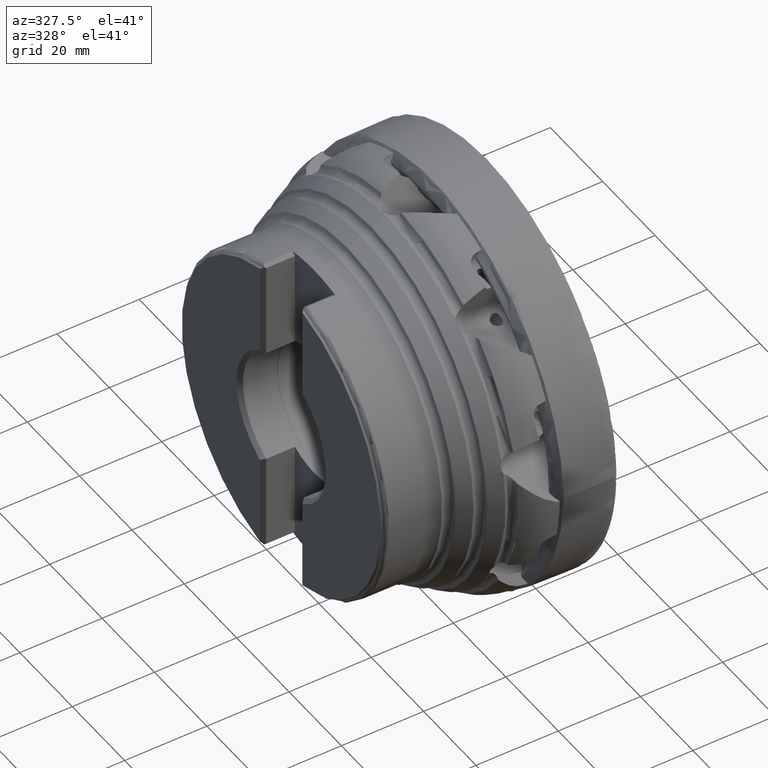
[diagram: clean part render]
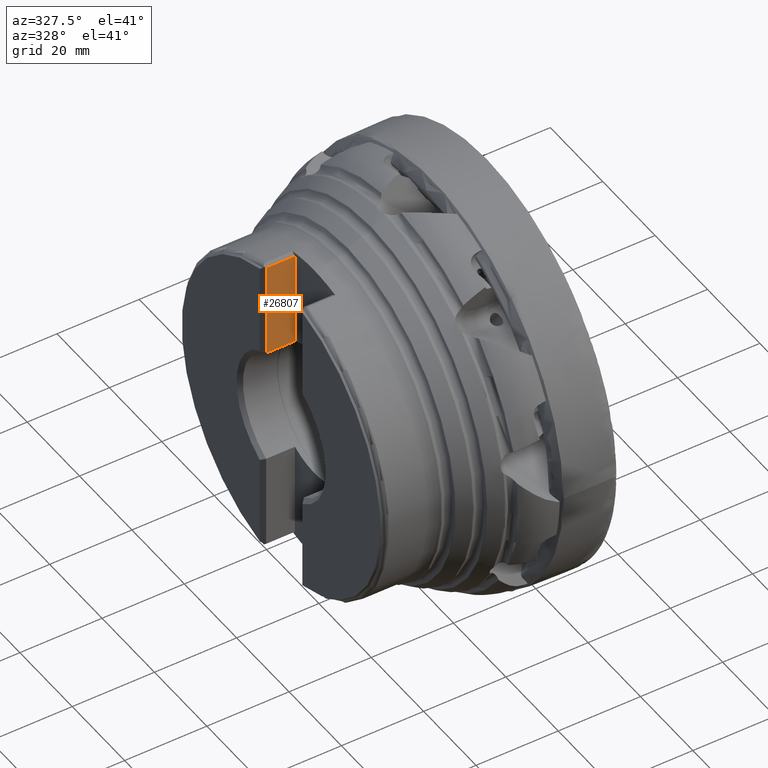
[diagram: same view with one face highlighted and labeled with its STEP entity id]
A machine part, auxiliary view. The second image highlights one B-rep face of the part: STEP entity #26807.
In plain terms, the highlighted planar face has unit normal (-0, 1, 0).
Its self-contained STEP definition (entity closure, byte-faithful):
#1885 = EDGE_CURVE ( 'NONE', #8559, #5003, #19461, .T. ) ;
#2825 = LINE ( 'NONE', #6903, #17342 ) ;
#2894 = ORIENTED_EDGE ( 'NONE', *, *, #1885, .F. ) ;
#3240 = CARTESIAN_POINT ( 'NONE',  ( -41.24999999999999300, 7.199999999999994800, 37.47303783587896900 ) ) ;
#3494 = CARTESIAN_POINT ( 'NONE',  ( -41.24999999999999300, 7.199999999999994800, -40.00000000000000000 ) ) ;
#3614 = CARTESIAN_POINT ( 'NONE',  ( -48.24999999999997200, 7.199999999999994000, -40.00000000000000000 ) ) ;
#5003 = VERTEX_POINT ( 'NONE', #7920 ) ;
#6903 = CARTESIAN_POINT ( 'NONE',  ( -47.74999999999985800, 7.199999999999994000, 37.47303783587896900 ) ) ;
#7920 = CARTESIAN_POINT ( 'NONE',  ( -48.24999999999997200, 7.199999999999987700, 37.47303783587896200 ) ) ;
#8065 = VECTOR ( 'NONE', #9067, 1000.000000000000000 ) ;
#8445 = EDGE_LOOP ( 'NONE', ( #11645, #25233, #2894, #27197 ) ) ;
#8559 = VERTEX_POINT ( 'NONE', #17531 ) ;
#9005 = CARTESIAN_POINT ( 'NONE',  ( -8.921435019309322100E-016, 7.200000000000000200, 14.37239106759900800 ) ) ;
#9067 = DIRECTION ( 'NONE',  ( -0.0000000000000000000, -0.0000000000000000000, 1.000000000000000000 ) ) ;
#9410 = EDGE_CURVE ( 'NONE', #13117, #27978, #19545, .T. ) ;
#10245 = DIRECTION ( 'NONE',  ( -1.000000000000000000, -1.239088197126294800E-016, 0.0000000000000000000 ) ) ;
#11645 = ORIENTED_EDGE ( 'NONE', *, *, #9410, .T. ) ;
#12369 = LINE ( 'NONE', #9005, #26119 ) ;
#13117 = VERTEX_POINT ( 'NONE', #24344 ) ;
#15754 = VECTOR ( 'NONE', #23122, 1000.000000000000000 ) ;
#17173 = AXIS2_PLACEMENT_3D ( 'NONE', #3614, #23419, #10245 ) ;
#17235 = EDGE_CURVE ( 'NONE', #27978, #5003, #2825, .T. ) ;
#17342 = VECTOR ( 'NONE', #17662, 1000.000000000000000 ) ;
#17531 = CARTESIAN_POINT ( 'NONE',  ( -48.24999999999997200, 7.199999999999994000, 14.37239106759901500 ) ) ;
#17662 = DIRECTION ( 'NONE',  ( -1.000000000000000000, -1.239088197126294800E-016, 2.654026406738398000E-017 ) ) ;
#18125 = CARTESIAN_POINT ( 'NONE',  ( -48.24999999999997200, 7.199999999999994000, -40.00000000000000000 ) ) ;
#19461 = LINE ( 'NONE', #18125, #8065 ) ;
#19545 = LINE ( 'NONE', #3494, #15754 ) ;
#21135 = PLANE ( 'NONE',  #17173 ) ;
#21734 = EDGE_CURVE ( 'NONE', #13117, #8559, #12369, .T. ) ;
#23122 = DIRECTION ( 'NONE',  ( -0.0000000000000000000, -0.0000000000000000000, 1.000000000000000000 ) ) ;
#23419 = DIRECTION ( 'NONE',  ( -1.239088197126294800E-016, 1.000000000000000000, 0.0000000000000000000 ) ) ;
#24309 = DIRECTION ( 'NONE',  ( -1.000000000000000000, 0.0000000000000000000, 0.0000000000000000000 ) ) ;
#24344 = CARTESIAN_POINT ( 'NONE',  ( -41.24999999999999300, 7.199999999999994800, 14.37239106759900900 ) ) ;
#25233 = ORIENTED_EDGE ( 'NONE', *, *, #17235, .T. ) ;
#26119 = VECTOR ( 'NONE', #24309, 1000.000000000000000 ) ;
#26807 = ADVANCED_FACE ( 'NONE', ( #28015 ), #21135, .F. ) ;
#27197 = ORIENTED_EDGE ( 'NONE', *, *, #21734, .F. ) ;
#27978 = VERTEX_POINT ( 'NONE', #3240 ) ;
#28015 = FACE_OUTER_BOUND ( 'NONE', #8445, .T. ) ;